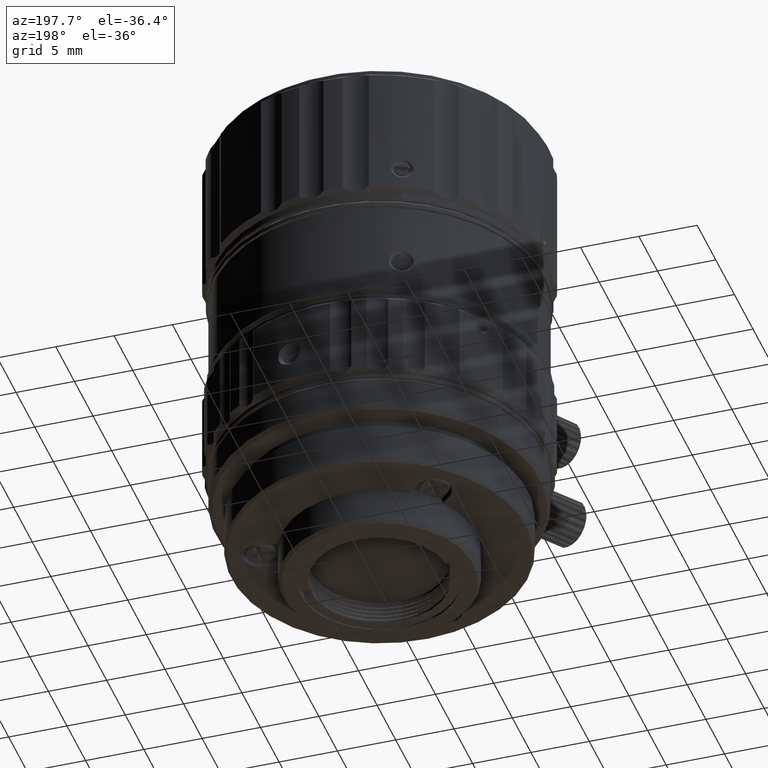
[diagram: clean part render]
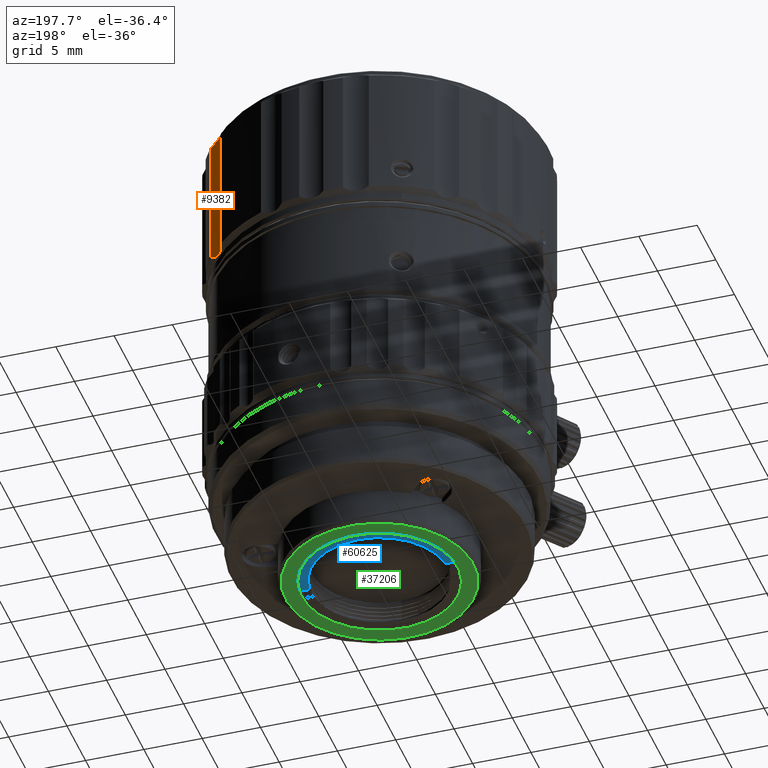
[diagram: same view with three faces highlighted in distinct colors, each labeled with its STEP entity id]
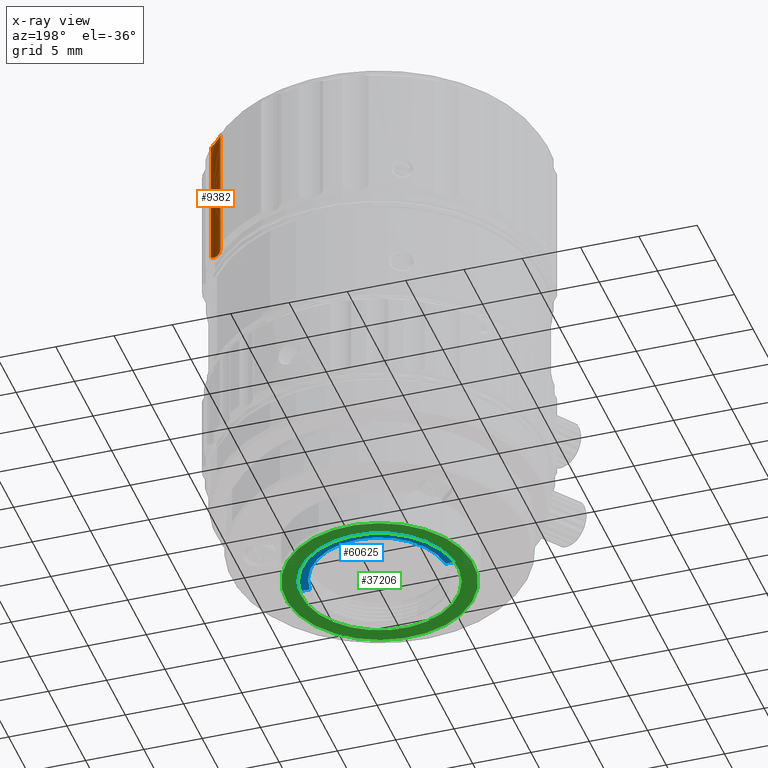
[diagram: x-ray of the same camera — body ghosted, the three highlighted faces saturated]
A machine part, auxiliary view with three faces highlighted in distinct colors.
The next image is the same camera in x-ray (body ghosted, the three faces saturated) — at least one of them is partly hidden behind the body in this view.
Their STEP definitions:

[orange] entity #9382 — the highlighted cylindrical surface (edge-blend (fillet) strip) has radius 2.3 mm, axis along (0, 0, -1).
#680 = B_SPLINE_CURVE_WITH_KNOTS ( 'NONE', 3,
 ( #16394, #56336, #8855, #21858, #12202, #23035, #11876, #7057, #2209, #36042, #31840, #26377, #55705, #26701, #47508 ),
 .UNSPECIFIED., .F., .F.,
 ( 4, 1, 1, 1, 1, 1, 1, 1, 1, 1, 1, 1, 4 ),
 ( 0.000000000000000000, 0.08333333333333001192, 0.1666666666667000196, 0.2500000000000000000, 0.3333333333333000081, 0.4166666666666999919, 0.5000000000000000000, 0.5833333333333000637, 0.6666666666667000474, 0.7500000000000000000, 0.8333333333333000637, 0.9166666666667000474, 1.000000000000000000 ),
 .UNSPECIFIED. ) ;
#964 = CARTESIAN_POINT ( 'NONE',  ( 11.26285888353720033, 8.760663217984399509, 15.64852960357099931 ) ) ;
#1280 = CARTESIAN_POINT ( 'NONE',  ( 11.76162877286030017, 8.480217485971810021, 15.88000004966100320 ) ) ;
#1784 = AXIS2_PLACEMENT_3D ( 'NONE', #9417, #33902, #4264 ) ;
#2176 = DIRECTION ( 'NONE',  ( -5.257287898581610208E-15, 1.962046554752580000E-14, -1.000000000000000000 ) ) ;
#2209 = CARTESIAN_POINT ( 'NONE',  ( 10.76822370958169905, 9.265164409320078676, 27.32480362290450060 ) ) ;
#4264 = DIRECTION ( 'NONE',  ( -0.6427876096864327815, 0.7660444431190674974, 0.000000000000000000 ) ) ;
#4904 = EDGE_CURVE ( 'NONE', #26271, #46691, #680, .T. ) ;
#6134 = CARTESIAN_POINT ( 'NONE',  ( 10.44244784694459938, 9.917187227061100785, 15.78087502248100371 ) ) ;
#6751 = CARTESIAN_POINT ( 'NONE',  ( 10.99419720409560064, 8.995840487426528753, 15.58518211888100069 ) ) ;
#7057 = CARTESIAN_POINT ( 'NONE',  ( 10.87593808914130022, 9.126367629681590543, 27.33259433036729646 ) ) ;
#7949 = VERTEX_POINT ( 'NONE', #54596 ) ;
#8855 = CARTESIAN_POINT ( 'NONE',  ( 11.57983509205180006, 8.561697187980430002, 27.12912844916360200 ) ) ;
#9382 = ADVANCED_FACE ( 'NONE', ( #51351 ), #26861, .F. ) ;
#9417 = CARTESIAN_POINT ( 'NONE',  ( 12.63973331146939927, 10.60599555983029951, 15.48000004966099930 ) ) ;
#10959 = CARTESIAN_POINT ( 'NONE',  ( 11.57984176564599821, 8.561694534825651459, 15.78087554074100041 ) ) ;
#11876 = CARTESIAN_POINT ( 'NONE',  ( 10.99419565601460036, 8.995840586381490311, 27.32481928590210174 ) ) ;
#12202 = CARTESIAN_POINT ( 'NONE',  ( 11.26287426896750077, 8.760652195439680767, 27.26146506817319803 ) ) ;
#14307 = B_SPLINE_CURVE_WITH_KNOTS ( 'NONE', 3,
 ( #1280, #55727, #10959, #40260, #964, #45091, #6751, #50249, #59927, #15775, #16420, #16090, #6134, #20929, #44754 ),
 .UNSPECIFIED., .F., .F.,
 ( 4, 1, 1, 1, 1, 1, 1, 1, 1, 1, 1, 1, 4 ),
 ( 0.000000000000000000, 0.08333333333333001192, 0.1666666666667000196, 0.2500000000000000000, 0.3333333333333000081, 0.4166666666666999919, 0.5000000000000000000, 0.5833333333333000637, 0.6666666666667000474, 0.7500000000000000000, 0.8333333333333000637, 0.9166666666667000474, 1.000000000000000000 ),
 .UNSPECIFIED. ) ;
#15407 = CARTESIAN_POINT ( 'NONE',  ( 11.76162877286030017, 8.480217485971810021, 27.03000004966129666 ) ) ;
#15775 = CARTESIAN_POINT ( 'NONE',  ( 10.67042910388239996, 9.413334416676208960, 15.60879615946099896 ) ) ;
#16090 = CARTESIAN_POINT ( 'NONE',  ( 10.50688133875640062, 9.738480727040458973, 15.70558377757099855 ) ) ;
#16394 = CARTESIAN_POINT ( 'NONE',  ( 11.76162877286030017, 8.480217485971810021, 27.03000004966129666 ) ) ;
#16420 = CARTESIAN_POINT ( 'NONE',  ( 10.58332323856970092, 9.570526853386679633, 15.64854788789099871 ) ) ;
#18915 = VERTEX_POINT ( 'NONE', #56211 ) ;
#20929 = CARTESIAN_POINT ( 'NONE',  ( 10.40823555615070006, 10.04481426193139981, 15.84466054166100157 ) ) ;
#21552 = CARTESIAN_POINT ( 'NONE',  ( 10.39376933022150062, 10.11036889090850188, 27.03000004966099823 ) ) ;
#21858 = CARTESIAN_POINT ( 'NONE',  ( 11.41489244183149943, 8.656277783139881166, 27.20447365987230270 ) ) ;
#23035 = CARTESIAN_POINT ( 'NONE',  ( 11.12298762580859979, 8.873921601554808802, 27.30125950674469948 ) ) ;
#23232 = CARTESIAN_POINT ( 'NONE',  ( 10.39376933022180083, 10.11036889090760127, 27.03000004966110126 ) ) ;
#26271 = VERTEX_POINT ( 'NONE', #30674 ) ;
#26377 = CARTESIAN_POINT ( 'NONE',  ( 10.50687637378710093, 9.738494068570471285, 27.20441083565290086 ) ) ;
#26701 = CARTESIAN_POINT ( 'NONE',  ( 10.40823619396699939, 10.04481137163699955, 27.06534111577619939 ) ) ;
#26861 = CYLINDRICAL_SURFACE ( 'NONE', #1784, 2.300000000000000266 ) ;
#27277 = EDGE_LOOP ( 'NONE', ( #43510, #36007, #38493, #54817 ) ) ;
#28067 = DIRECTION ( 'NONE',  ( 0.000000000000000000, 0.000000000000000000, -1.000000000000000000 ) ) ;
#30674 = CARTESIAN_POINT ( 'NONE',  ( 11.76162877286030017, 8.480217485971810021, 27.03000004966129666 ) ) ;
#31840 = CARTESIAN_POINT ( 'NONE',  ( 10.58330907062419968, 9.570557433533789293, 27.26144203550880007 ) ) ;
#33902 = DIRECTION ( 'NONE',  ( 0.000000000000000000, 0.000000000000000000, -1.000000000000000000 ) ) ;
#36007 = ORIENTED_EDGE ( 'NONE', *, *, #62039, .F. ) ;
#36042 = CARTESIAN_POINT ( 'NONE',  ( 10.67039205685830083, 9.413394911866419079, 27.30119175379149965 ) ) ;
#36520 = EDGE_CURVE ( 'NONE', #7949, #18915, #14307, .T. ) ;
#38493 = ORIENTED_EDGE ( 'NONE', *, *, #4904, .F. ) ;
#39823 = VECTOR ( 'NONE', #2176, 1000.000000000000000 ) ;
#40260 = CARTESIAN_POINT ( 'NONE',  ( 11.41491622584590004, 8.656262130181151093, 15.70553584559099924 ) ) ;
#40987 = VECTOR ( 'NONE', #28067, 1000.000000000000000 ) ;
#43510 = ORIENTED_EDGE ( 'NONE', *, *, #36520, .T. ) ;
#44754 = CARTESIAN_POINT ( 'NONE',  ( 10.39376933022180083, 10.11036889090760127, 15.88000004966100320 ) ) ;
#45091 = CARTESIAN_POINT ( 'NONE',  ( 11.12299210564429863, 8.873917977366369669, 15.60874186375099981 ) ) ;
#46691 = VERTEX_POINT ( 'NONE', #21552 ) ;
#47508 = CARTESIAN_POINT ( 'NONE',  ( 10.39376933022150062, 10.11036889090850188, 27.03000004966099823 ) ) ;
#50249 = CARTESIAN_POINT ( 'NONE',  ( 10.87598152209180036, 9.126316365646719220, 15.57740614064099915 ) ) ;
#51351 = FACE_OUTER_BOUND ( 'NONE', #27277, .T. ) ;
#54590 = EDGE_CURVE ( 'NONE', #26271, #7949, #59550, .T. ) ;
#54596 = CARTESIAN_POINT ( 'NONE',  ( 11.76162877286030017, 8.480217485971810021, 15.88000004966100320 ) ) ;
#54817 = ORIENTED_EDGE ( 'NONE', *, *, #54590, .T. ) ;
#55705 = CARTESIAN_POINT ( 'NONE',  ( 10.44244958593539963, 9.917182755805688643, 27.12912685307700045 ) ) ;
#55727 = CARTESIAN_POINT ( 'NONE',  ( 11.69958675236840051, 8.505845457420861067, 15.84466319161099968 ) ) ;
#56211 = CARTESIAN_POINT ( 'NONE',  ( 10.39376933022180083, 10.11036889090760127, 15.88000004966100320 ) ) ;
#56336 = CARTESIAN_POINT ( 'NONE',  ( 11.69958335853650055, 8.505846859326311460, 27.06533884071780349 ) ) ;
#57074 = LINE ( 'NONE', #23232, #40987 ) ;
#59550 = LINE ( 'NONE', #15407, #39823 ) ;
#59927 = CARTESIAN_POINT ( 'NONE',  ( 10.76824142983289967, 9.265139517920689016, 15.58519365595100048 ) ) ;
#62039 = EDGE_CURVE ( 'NONE', #46691, #18915, #57074, .T. ) ;

[blue] entity #60625 — the highlighted planar face has unit normal (0, 0, -1).
#1294 = CARTESIAN_POINT ( 'NONE',  ( 5.828593312285029526, 0.5000000000010259571, -13.50799995034000034 ) ) ;
#2405 = DIRECTION ( 'NONE',  ( 0.000000000000000000, 0.000000000000000000, -1.000000000000000000 ) ) ;
#2522 = DIRECTION ( 'NONE',  ( -1.000000000000000000, 0.000000000000000000, 0.000000000000000000 ) ) ;
#6047 = CIRCLE ( 'NONE', #42014, 5.850000000000002309 ) ;
#6465 = LINE ( 'NONE', #26107, #28310 ) ;
#6598 = ORIENTED_EDGE ( 'NONE', *, *, #13628, .T. ) ;
#7149 = DIRECTION ( 'NONE',  ( 0.000000000000000000, 0.000000000000000000, -1.000000000000000000 ) ) ;
#9601 = DIRECTION ( 'NONE',  ( 0.9963407371425375691, 0.08547008547009327106, 0.000000000000000000 ) ) ;
#10003 = VECTOR ( 'NONE', #2522, 1000.000000000000000 ) ;
#11000 = EDGE_CURVE ( 'NONE', #11431, #41908, #19339, .T. ) ;
#11431 = VERTEX_POINT ( 'NONE', #1294 ) ;
#12815 = LINE ( 'NONE', #32141, #10003 ) ;
#13628 = EDGE_CURVE ( 'NONE', #41908, #42526, #6047, .T. ) ;
#13679 = CIRCLE ( 'NONE', #28072, 6.799999999999999822 ) ;
#19339 = CIRCLE ( 'NONE', #33723, 5.850000000000002309 ) ;
#19437 = DIRECTION ( 'NONE',  ( 0.9963407371425375691, 0.08547008547009327106, 0.000000000000000000 ) ) ;
#23777 = CARTESIAN_POINT ( 'NONE',  ( 1.025591790732000133E-12, 1.025591790732000133E-12, -13.50799995034000034 ) ) ;
#26107 = CARTESIAN_POINT ( 'NONE',  ( 6.781592733275030760, 0.5000000000010259571, -13.50799995034000034 ) ) ;
#28072 = AXIS2_PLACEMENT_3D ( 'NONE', #32035, #2405, #36548 ) ;
#28310 = VECTOR ( 'NONE', #50276, 1000.000000000000000 ) ;
#28459 = DIRECTION ( 'NONE',  ( 0.000000000000000000, 0.000000000000000000, -1.000000000000000000 ) ) ;
#28875 = VERTEX_POINT ( 'NONE', #33885 ) ;
#29705 = CARTESIAN_POINT ( 'NONE',  ( -5.828593312282969841, 0.5000000000010259571, -13.50799995034000034 ) ) ;
#29814 = EDGE_CURVE ( 'NONE', #28875, #40491, #13679, .T. ) ;
#30355 = AXIS2_PLACEMENT_3D ( 'NONE', #46731, #7149, #51887 ) ;
#32035 = CARTESIAN_POINT ( 'NONE',  ( 1.025591790732000133E-12, 1.025591790732000133E-12, -13.50799995034000034 ) ) ;
#32141 = CARTESIAN_POINT ( 'NONE',  ( -5.828593312282969841, 0.5000000000010259571, -13.50799995034000034 ) ) ;
#32694 = ORIENTED_EDGE ( 'NONE', *, *, #43116, .T. ) ;
#33408 = CIRCLE ( 'NONE', #30355, 6.799999999999999822 ) ;
#33723 = AXIS2_PLACEMENT_3D ( 'NONE', #49052, #33929, #19437 ) ;
#33885 = CARTESIAN_POINT ( 'NONE',  ( -6.781592733272969298, 0.5000000000010259571, -13.50799995034000034 ) ) ;
#33929 = DIRECTION ( 'NONE',  ( 0.000000000000000000, 0.000000000000000000, 1.000000000000000000 ) ) ;
#33934 = FACE_OUTER_BOUND ( 'NONE', #59843, .T. ) ;
#36200 = ORIENTED_EDGE ( 'NONE', *, *, #51028, .T. ) ;
#36548 = DIRECTION ( 'NONE',  ( -0.9972930490109389590, 0.07352941176471290696, 0.000000000000000000 ) ) ;
#40491 = VERTEX_POINT ( 'NONE', #61858 ) ;
#41908 = VERTEX_POINT ( 'NONE', #50779 ) ;
#42014 = AXIS2_PLACEMENT_3D ( 'NONE', #23777, #58577, #9601 ) ;
#42526 = VERTEX_POINT ( 'NONE', #29705 ) ;
#42933 = DIRECTION ( 'NONE',  ( 0.000000000000000000, -1.000000000000000000, 0.000000000000000000 ) ) ;
#43116 = EDGE_CURVE ( 'NONE', #42526, #28875, #12815, .T. ) ;
#43353 = ORIENTED_EDGE ( 'NONE', *, *, #46860, .T. ) ;
#44387 = ORIENTED_EDGE ( 'NONE', *, *, #11000, .T. ) ;
#44691 = CARTESIAN_POINT ( 'NONE',  ( 6.781592733275030760, 0.5000000000010259571, -13.50799995034000034 ) ) ;
#46731 = CARTESIAN_POINT ( 'NONE',  ( 1.025591790732000133E-12, 1.025591790732000133E-12, -13.50799995034000034 ) ) ;
#46860 = EDGE_CURVE ( 'NONE', #40491, #49768, #33408, .T. ) ;
#49052 = CARTESIAN_POINT ( 'NONE',  ( 1.025591790732000133E-12, 1.025591790732000133E-12, -13.50799995034000034 ) ) ;
#49768 = VERTEX_POINT ( 'NONE', #44691 ) ;
#50276 = DIRECTION ( 'NONE',  ( -1.000000000000000000, 0.000000000000000000, 0.000000000000000000 ) ) ;
#50772 = ORIENTED_EDGE ( 'NONE', *, *, #29814, .T. ) ;
#50779 = CARTESIAN_POINT ( 'NONE',  ( 1.025591790732000133E-12, 5.850000000001025491, -13.50799995034000034 ) ) ;
#51028 = EDGE_CURVE ( 'NONE', #49768, #11431, #6465, .T. ) ;
#51887 = DIRECTION ( 'NONE',  ( -0.9972930490109389590, 0.07352941176471290696, 0.000000000000000000 ) ) ;
#53591 = CARTESIAN_POINT ( 'NONE',  ( 1.025591790732000133E-12, 1.025591790732000133E-12, -13.50799995034000034 ) ) ;
#58361 = AXIS2_PLACEMENT_3D ( 'NONE', #53591, #28459, #42933 ) ;
#58577 = DIRECTION ( 'NONE',  ( 0.000000000000000000, 0.000000000000000000, 1.000000000000000000 ) ) ;
#59843 = EDGE_LOOP ( 'NONE', ( #44387, #6598, #32694, #50772, #43353, #36200 ) ) ;
#60625 = ADVANCED_FACE ( 'NONE', ( #33934 ), #63255, .T. ) ;
#61858 = CARTESIAN_POINT ( 'NONE',  ( 1.025591790732000133E-12, 6.800000000001024780, -13.50799995034000034 ) ) ;
#63255 = PLANE ( 'NONE',  #58361 ) ;

[green] entity #37206 — the highlighted planar face has unit normal (0, 0, -1).
#1372 = CARTESIAN_POINT ( 'NONE',  ( -5.692209602176916405, 5.692209602178917471, -13.66999995033899928 ) ) ;
#3604 = AXIS2_PLACEMENT_3D ( 'NONE', #25449, #29962, #15768 ) ;
#6834 = EDGE_LOOP ( 'NONE', ( #14512, #30123 ) ) ;
#9246 = EDGE_CURVE ( 'NONE', #33154, #16621, #59143, .T. ) ;
#9476 = EDGE_CURVE ( 'NONE', #22891, #13340, #52167, .T. ) ;
#11366 = CARTESIAN_POINT ( 'NONE',  ( -4.737615433948960231, -4.737615433948873189, -13.66999995033899928 ) ) ;
#13340 = VERTEX_POINT ( 'NONE', #11366 ) ;
#14512 = ORIENTED_EDGE ( 'NONE', *, *, #47276, .F. ) ;
#15768 = DIRECTION ( 'NONE',  ( -0.7071067811865540120, -0.7071067811865410224, 0.000000000000000000 ) ) ;
#16230 = DIRECTION ( 'NONE',  ( 0.7071067811865410224, -0.7071067811865540120, 0.000000000000000000 ) ) ;
#16621 = VERTEX_POINT ( 'NONE', #25445 ) ;
#20372 = DIRECTION ( 'NONE',  ( -0.7071067811865540120, -0.7071067811865410224, 0.000000000000000000 ) ) ;
#21087 = ORIENTED_EDGE ( 'NONE', *, *, #9246, .F. ) ;
#21314 = AXIS2_PLACEMENT_3D ( 'NONE', #48700, #44825, #20372 ) ;
#22891 = VERTEX_POINT ( 'NONE', #41320 ) ;
#23727 = CARTESIAN_POINT ( 'NONE',  ( 9.526812944147000809E-13, 9.526812944147000809E-13, -13.66999995033899928 ) ) ;
#25445 = CARTESIAN_POINT ( 'NONE',  ( 5.692209602178819772, -5.692209602177013217, -13.66999995033899928 ) ) ;
#25449 = CARTESIAN_POINT ( 'NONE',  ( 9.526812944147000809E-13, 9.526812944147000809E-13, -13.66999995033899928 ) ) ;
#26270 = CIRCLE ( 'NONE', #3604, 6.700000000000000178 ) ;
#26705 = DIRECTION ( 'NONE',  ( 0.7071067811865410224, -0.7071067811865540120, 0.000000000000000000 ) ) ;
#28411 = EDGE_CURVE ( 'NONE', #16621, #33154, #48620, .T. ) ;
#28876 = PLANE ( 'NONE',  #33056 ) ;
#29909 = EDGE_LOOP ( 'NONE', ( #21087, #43284 ) ) ;
#29962 = DIRECTION ( 'NONE',  ( 0.000000000000000000, 0.000000000000000000, -1.000000000000000000 ) ) ;
#30123 = ORIENTED_EDGE ( 'NONE', *, *, #9476, .F. ) ;
#33056 = AXIS2_PLACEMENT_3D ( 'NONE', #23727, #48516, #57576 ) ;
#33154 = VERTEX_POINT ( 'NONE', #1372 ) ;
#37206 = ADVANCED_FACE ( 'NONE', ( #37912, #52423 ), #28876, .T. ) ;
#37912 = FACE_OUTER_BOUND ( 'NONE', #29909, .T. ) ;
#39579 = AXIS2_PLACEMENT_3D ( 'NONE', #60226, #49890, #26705 ) ;
#41320 = CARTESIAN_POINT ( 'NONE',  ( 4.737615433950864485, 4.737615433950775667, -13.66999995033899928 ) ) ;
#43284 = ORIENTED_EDGE ( 'NONE', *, *, #28411, .F. ) ;
#43448 = AXIS2_PLACEMENT_3D ( 'NONE', #50380, #60698, #16230 ) ;
#44825 = DIRECTION ( 'NONE',  ( 0.000000000000000000, 0.000000000000000000, -1.000000000000000000 ) ) ;
#47276 = EDGE_CURVE ( 'NONE', #13340, #22891, #26270, .T. ) ;
#48516 = DIRECTION ( 'NONE',  ( 0.000000000000000000, 0.000000000000000000, -1.000000000000000000 ) ) ;
#48620 = CIRCLE ( 'NONE', #43448, 8.050000019046001043 ) ;
#48700 = CARTESIAN_POINT ( 'NONE',  ( 9.526812944147000809E-13, 9.526812944147000809E-13, -13.66999995033899928 ) ) ;
#49890 = DIRECTION ( 'NONE',  ( 0.000000000000000000, 0.000000000000000000, 1.000000000000000000 ) ) ;
#50380 = CARTESIAN_POINT ( 'NONE',  ( 9.526812944147000809E-13, 9.526812944147000809E-13, -13.66999995033899928 ) ) ;
#52167 = CIRCLE ( 'NONE', #21314, 6.700000000000000178 ) ;
#52423 = FACE_BOUND ( 'NONE', #6834, .T. ) ;
#57576 = DIRECTION ( 'NONE',  ( 0.000000000000000000, -1.000000000000000000, 0.000000000000000000 ) ) ;
#59143 = CIRCLE ( 'NONE', #39579, 8.050000019046001043 ) ;
#60226 = CARTESIAN_POINT ( 'NONE',  ( 9.526812944147000809E-13, 9.526812944147000809E-13, -13.66999995033899928 ) ) ;
#60698 = DIRECTION ( 'NONE',  ( 0.000000000000000000, 0.000000000000000000, 1.000000000000000000 ) ) ;